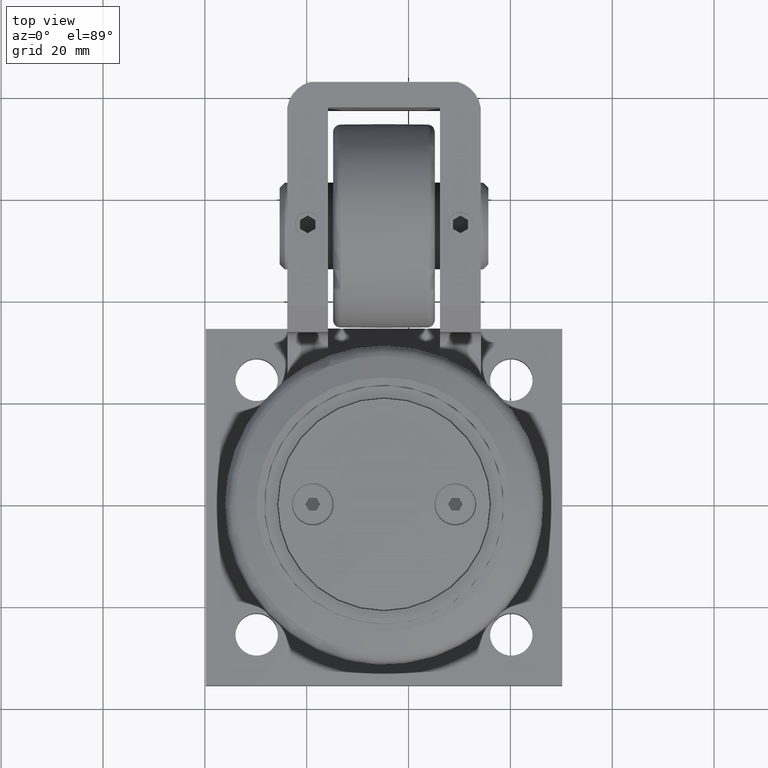
[diagram: clean part render]
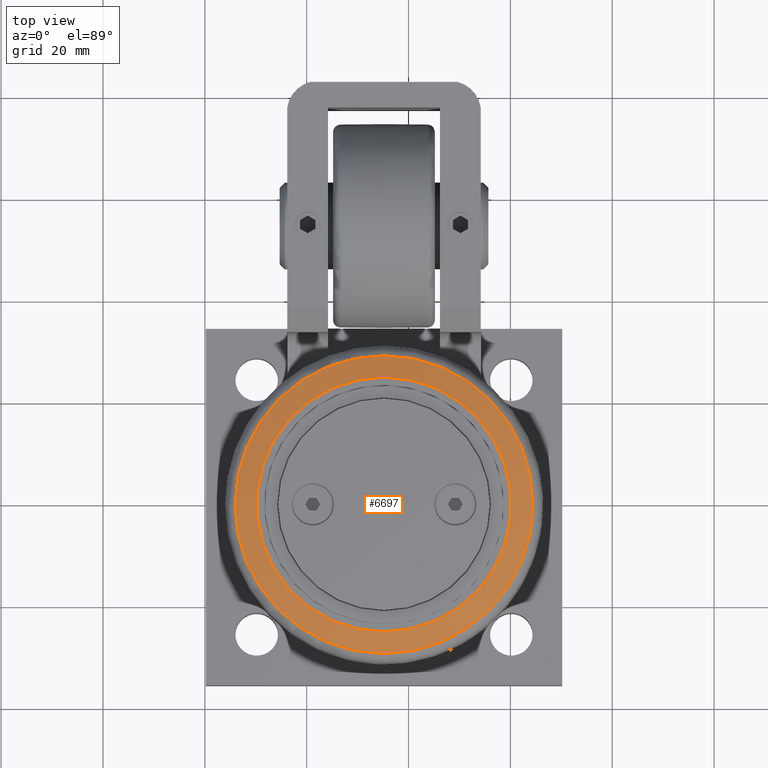
[diagram: same view with one face highlighted and labeled with its STEP entity id]
A machine part, top view. The second image highlights one B-rep face of the part: STEP entity #6697.
In plain terms, the highlighted conical surface has half-angle 70 deg.
Its self-contained STEP definition (entity closure, byte-faithful):
#333=CONICAL_SURFACE('',#7284,28.0949899497524,1.22173047639603);
#424=FACE_OUTER_BOUND('',#820,.T.);
#820=EDGE_LOOP('',(#4929,#4930,#4931,#4932,#4933,#4934,#4935));
#1311=CIRCLE('',#7273,25.);
#1312=CIRCLE('',#7274,25.);
#1320=CIRCLE('',#7285,29.2441009494824);
#1321=CIRCLE('',#7286,29.2441009494824);
#1322=CIRCLE('',#7287,29.2441009494824);
#2018=LINE('',#11643,#2355);
#2355=VECTOR('',#8831,28.0949899497524);
#2835=VERTEX_POINT('',#11622);
#2836=VERTEX_POINT('',#11623);
#2843=VERTEX_POINT('',#11642);
#2844=VERTEX_POINT('',#11644);
#2845=VERTEX_POINT('',#11646);
#3560=EDGE_CURVE('',#2835,#2836,#1311,.T.);
#3561=EDGE_CURVE('',#2836,#2835,#1312,.T.);
#3569=EDGE_CURVE('',#2836,#2843,#2018,.T.);
#3570=EDGE_CURVE('',#2844,#2843,#1320,.T.);
#3571=EDGE_CURVE('',#2845,#2844,#1321,.T.);
#3572=EDGE_CURVE('',#2843,#2845,#1322,.T.);
#4929=ORIENTED_EDGE('',*,*,#3560,.F.);
#4930=ORIENTED_EDGE('',*,*,#3561,.F.);
#4931=ORIENTED_EDGE('',*,*,#3569,.T.);
#4932=ORIENTED_EDGE('',*,*,#3570,.F.);
#4933=ORIENTED_EDGE('',*,*,#3571,.F.);
#4934=ORIENTED_EDGE('',*,*,#3572,.F.);
#4935=ORIENTED_EDGE('',*,*,#3569,.F.);
#6697=ADVANCED_FACE('',(#424),#333,.T.);
#7273=AXIS2_PLACEMENT_3D('',#11624,#8807,#8808);
#7274=AXIS2_PLACEMENT_3D('',#11625,#8809,#8810);
#7284=AXIS2_PLACEMENT_3D('',#11641,#8829,#8830);
#7285=AXIS2_PLACEMENT_3D('',#11645,#8832,#8833);
#7286=AXIS2_PLACEMENT_3D('',#11647,#8834,#8835);
#7287=AXIS2_PLACEMENT_3D('',#11648,#8836,#8837);
#8807=DIRECTION('center_axis',(0.,-1.21543267145725E-63,1.));
#8808=DIRECTION('ref_axis',(-1.21543267145725E-63,1.,1.21543267145725E-63));
#8809=DIRECTION('center_axis',(0.,-1.21543267145725E-63,1.));
#8810=DIRECTION('ref_axis',(-1.21543267145725E-63,1.,1.21543267145725E-63));
#8829=DIRECTION('center_axis',(0.,1.21543267145725E-63,-1.));
#8830=DIRECTION('ref_axis',(-1.21543267145725E-63,1.,1.21543267145725E-63));
#8831=DIRECTION('',(1.15079156022785E-16,-0.939692620785908,-0.342020143325669));
#8832=DIRECTION('center_axis',(0.,1.21543267145725E-63,-1.));
#8833=DIRECTION('ref_axis',(1.21543267145725E-63,-1.,-1.21543267145725E-63));
#8834=DIRECTION('center_axis',(0.,1.21543267145725E-63,-1.));
#8835=DIRECTION('ref_axis',(1.21543267145725E-63,-1.,-1.21543267145725E-63));
#8836=DIRECTION('center_axis',(0.,1.21543267145725E-63,-1.));
#8837=DIRECTION('ref_axis',(1.21543267145725E-63,-1.,-1.21543267145725E-63));
#11622=CARTESIAN_POINT('',(-4.81974949007196,4.52664571547393,20.85));
#11623=CARTESIAN_POINT('',(-4.81974949007195,-45.4733542845261,20.85));
#11624=CARTESIAN_POINT('Origin',(-4.81974949007196,-20.4733542845261,20.85));
#11625=CARTESIAN_POINT('Origin',(-4.81974949007196,-20.4733542845261,20.85));
#11641=CARTESIAN_POINT('Origin',(-4.81974949007196,-20.4733542845261,19.7235157829371));
#11642=CARTESIAN_POINT('',(-4.81974949007195,-49.7174552340085,19.3052735831675));
#11643=CARTESIAN_POINT('',(-4.81974949007195,-48.5683442342785,19.7235157829371));
#11644=CARTESIAN_POINT('',(-4.81974949007195,8.77074666495631,19.3052735831675));
#11645=CARTESIAN_POINT('Origin',(-4.81974949007195,-20.4733542845261,19.3052735831675));
#11646=CARTESIAN_POINT('',(-34.0638504395543,-20.4733542845261,19.3052735831675));
#11647=CARTESIAN_POINT('Origin',(-4.81974949007195,-20.4733542845261,19.3052735831675));
#11648=CARTESIAN_POINT('Origin',(-4.81974949007195,-20.4733542845261,19.3052735831675));